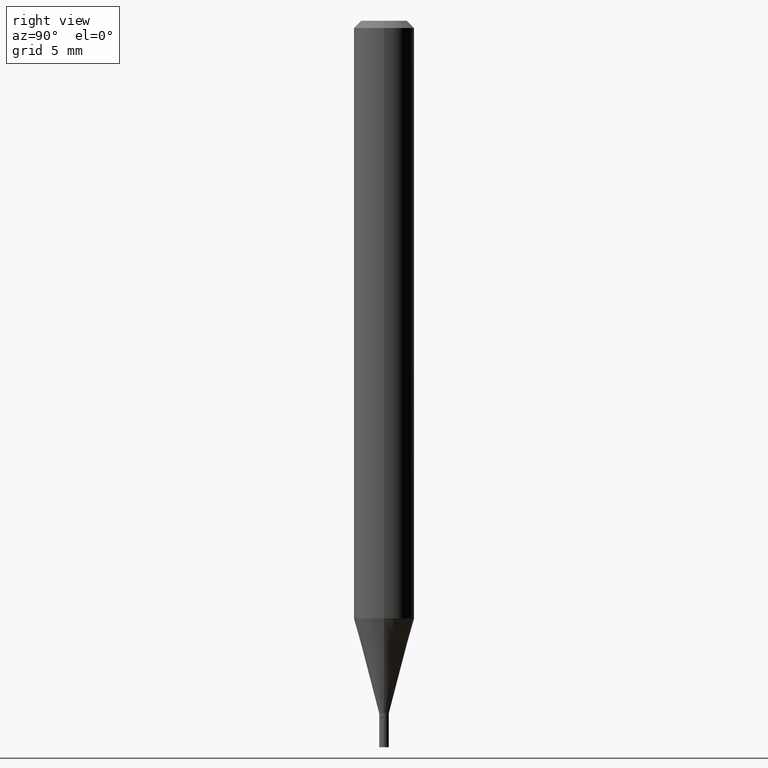
[diagram: clean part render]
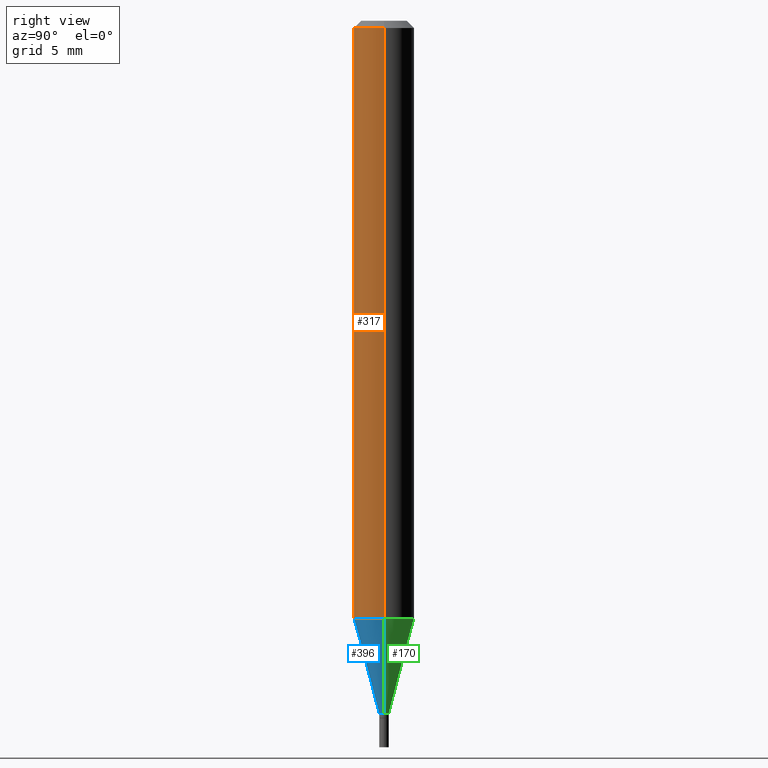
[diagram: same view with three faces highlighted in distinct colors, each labeled with its STEP entity id]
A machine part, right view with three faces highlighted in distinct colors.
Their STEP definitions:

[orange] entity #317 — the highlighted cylindrical surface (edge-blend (fillet) strip) has radius 1.5875 mm, axis along (-0, 0, 1).
#1 = VERTEX_POINT ( 'NONE', #126 ) ;
#6 = CARTESIAN_POINT ( 'NONE',  ( 0.06250000000000000000, -4.364351673553916694E-16, 3.047610484872459871E-30 ) ) ;
#12 = LINE ( 'NONE', #6, #167 ) ;
#13 = DIRECTION ( 'NONE',  ( -2.445468806185136597E-29, 3.491481338843145583E-15, 1.000000000000000000 ) ) ;
#17 = CIRCLE ( 'NONE', #337, 0.06250000000000000000 ) ;
#20 = CARTESIAN_POINT ( 'NONE',  ( 0.06250000000000000000, -4.888073874380388472E-16, -0.01499999999999999944 ) ) ;
#36 = EDGE_CURVE ( 'NONE', #443, #68, #17, .T. ) ;
#46 = CARTESIAN_POINT ( 'NONE',  ( 3.017873166611840083E-29, -4.308723062658035041E-15, -1.234067332602634348 ) ) ;
#47 = CARTESIAN_POINT ( 'NONE',  ( 3.668203209277705088E-31, -5.237222008264718399E-17, -0.01499999999999999944 ) ) ;
#68 = VERTEX_POINT ( 'NONE', #20 ) ;
#88 = ORIENTED_EDGE ( 'NONE', *, *, #36, .F. ) ;
#101 = ORIENTED_EDGE ( 'NONE', *, *, #369, .T. ) ;
#102 = CARTESIAN_POINT ( 'NONE',  ( -0.06249999999999999306, -3.864633852807972425E-15, -1.234067332602634348 ) ) ;
#107 = ORIENTED_EDGE ( 'NONE', *, *, #321, .T. ) ;
#110 = VECTOR ( 'NONE', #450, 39.37007874015748143 ) ;
#126 = CARTESIAN_POINT ( 'NONE',  ( 0.06249999999999999306, -4.745158230013426710E-15, -1.234067332602634348 ) ) ;
#138 = EDGE_LOOP ( 'NONE', ( #402, #101, #107, #88 ) ) ;
#140 = LINE ( 'NONE', #457, #110 ) ;
#144 = CIRCLE ( 'NONE', #339, 0.06250000000000000000 ) ;
#167 = VECTOR ( 'NONE', #301, 39.37007874015748143 ) ;
#243 = CARTESIAN_POINT ( 'NONE',  ( -0.06250000000000000000, -1.736458431520278641E-15, -0.01499999999999999944 ) ) ;
#301 = DIRECTION ( 'NONE',  ( -2.445468806185136877E-29, 3.491481338843145188E-15, 1.000000000000000000 ) ) ;
#308 = CYLINDRICAL_SURFACE ( 'NONE', #313, 0.06250000000000000000 ) ;
#311 = DIRECTION ( 'NONE',  ( 1.000000000000000000, -6.982962677686266711E-15, 0.000000000000000000 ) ) ;
#313 = AXIS2_PLACEMENT_3D ( 'NONE', #338, #406, #441 ) ;
#317 = ADVANCED_FACE ( 'NONE', ( #373 ), #308, .T. ) ;
#321 = EDGE_CURVE ( 'NONE', #1, #68, #12, .T. ) ;
#337 = AXIS2_PLACEMENT_3D ( 'NONE', #47, #13, #311 ) ;
#338 = CARTESIAN_POINT ( 'NONE',  ( 0.000000000000000000, 0.000000000000000000, 0.000000000000000000 ) ) ;
#339 = AXIS2_PLACEMENT_3D ( 'NONE', #46, #410, #403 ) ;
#369 = EDGE_CURVE ( 'NONE', #430, #1, #144, .T. ) ;
#373 = FACE_OUTER_BOUND ( 'NONE', #138, .T. ) ;
#402 = ORIENTED_EDGE ( 'NONE', *, *, #427, .F. ) ;
#403 = DIRECTION ( 'NONE',  ( 1.000000000000000000, -6.982962677686262766E-15, 0.000000000000000000 ) ) ;
#406 = DIRECTION ( 'NONE',  ( -2.445468806185136597E-29, 3.491481338843145583E-15, 1.000000000000000000 ) ) ;
#410 = DIRECTION ( 'NONE',  ( -2.445468806185136597E-29, 3.491481338843145583E-15, 1.000000000000000000 ) ) ;
#427 = EDGE_CURVE ( 'NONE', #430, #443, #140, .T. ) ;
#430 = VERTEX_POINT ( 'NONE', #102 ) ;
#441 = DIRECTION ( 'NONE',  ( 1.000000000000000000, -6.982962677686266711E-15, 4.876176775795935793E-29 ) ) ;
#443 = VERTEX_POINT ( 'NONE', #243 ) ;
#450 = DIRECTION ( 'NONE',  ( -2.445468806185136877E-29, 3.491481338843145188E-15, 1.000000000000000000 ) ) ;
#457 = CARTESIAN_POINT ( 'NONE',  ( -0.06250000000000000000, 4.440892098500626162E-16, -3.074334431409316114E-30 ) ) ;

[blue] entity #396 — the highlighted conical surface has half-angle 15 deg.
#1 = VERTEX_POINT ( 'NONE', #126 ) ;
#23 = CONICAL_SURFACE ( 'NONE', #304, 0.009999999999999918676, 0.2617993877991502405 ) ;
#40 = EDGE_CURVE ( 'NONE', #45, #1, #378, .T. ) ;
#45 = VERTEX_POINT ( 'NONE', #49 ) ;
#46 = CARTESIAN_POINT ( 'NONE',  ( 3.017873166611840083E-29, -4.308723062658035041E-15, -1.234067332602634348 ) ) ;
#49 = CARTESIAN_POINT ( 'NONE',  ( 0.009999999999999918676, -5.062647941322559931E-15, -1.429999999999999938 ) ) ;
#56 = DIRECTION ( 'NONE',  ( -2.445468806185136597E-29, 3.491481338843145583E-15, 1.000000000000000000 ) ) ;
#61 = DIRECTION ( 'NONE',  ( 1.000000000000000000, -6.982962677686292743E-15, 0.000000000000000000 ) ) ;
#94 = CARTESIAN_POINT ( 'NONE',  ( 0.009999999999999918676, -5.062647941322559931E-15, -1.429999999999999938 ) ) ;
#99 = EDGE_CURVE ( 'NONE', #416, #45, #297, .T. ) ;
#102 = CARTESIAN_POINT ( 'NONE',  ( -0.06249999999999999306, -3.864633852807972425E-15, -1.234067332602634348 ) ) ;
#118 = ORIENTED_EDGE ( 'NONE', *, *, #432, .F. ) ;
#126 = CARTESIAN_POINT ( 'NONE',  ( 0.06249999999999999306, -4.745158230013426710E-15, -1.234067332602634348 ) ) ;
#134 = VECTOR ( 'NONE', #415, 39.37007874015748143 ) ;
#142 = AXIS2_PLACEMENT_3D ( 'NONE', #290, #56, #257 ) ;
#144 = CIRCLE ( 'NONE', #339, 0.06250000000000000000 ) ;
#157 = VECTOR ( 'NONE', #210, 39.37007874015748143 ) ;
#169 = CARTESIAN_POINT ( 'NONE',  ( -0.009999999999999918676, -4.393198946888830277E-15, -1.429999999999999938 ) ) ;
#183 = ORIENTED_EDGE ( 'NONE', *, *, #99, .T. ) ;
#208 = CARTESIAN_POINT ( 'NONE',  ( -0.009999999999999918676, -4.921764040969688918E-15, -1.429999999999999938 ) ) ;
#210 = DIRECTION ( 'NONE',  ( -0.2588190451025215166, 5.211531920934551042E-15, 0.9659258262890679791 ) ) ;
#221 = EDGE_LOOP ( 'NONE', ( #118, #183, #234, #309 ) ) ;
#234 = ORIENTED_EDGE ( 'NONE', *, *, #40, .T. ) ;
#257 = DIRECTION ( 'NONE',  ( 1.000000000000000000, -6.982962677686292743E-15, 0.000000000000000000 ) ) ;
#290 = CARTESIAN_POINT ( 'NONE',  ( 3.497020392844745759E-29, -4.992818314545698211E-15, -1.429999999999999938 ) ) ;
#297 = CIRCLE ( 'NONE', #142, 0.009999999999999918676 ) ;
#304 = AXIS2_PLACEMENT_3D ( 'NONE', #386, #451, #61 ) ;
#309 = ORIENTED_EDGE ( 'NONE', *, *, #369, .F. ) ;
#339 = AXIS2_PLACEMENT_3D ( 'NONE', #46, #410, #403 ) ;
#348 = FACE_OUTER_BOUND ( 'NONE', #221, .T. ) ;
#350 = LINE ( 'NONE', #208, #157 ) ;
#369 = EDGE_CURVE ( 'NONE', #430, #1, #144, .T. ) ;
#378 = LINE ( 'NONE', #94, #134 ) ;
#386 = CARTESIAN_POINT ( 'NONE',  ( 3.497020392844745759E-29, -4.992818314545698211E-15, -1.429999999999999938 ) ) ;
#396 = ADVANCED_FACE ( 'NONE', ( #348 ), #23, .T. ) ;
#403 = DIRECTION ( 'NONE',  ( 1.000000000000000000, -6.982962677686262766E-15, 0.000000000000000000 ) ) ;
#410 = DIRECTION ( 'NONE',  ( -2.445468806185136597E-29, 3.491481338843145583E-15, 1.000000000000000000 ) ) ;
#415 = DIRECTION ( 'NONE',  ( 0.2588190451025215166, 1.565188264969620784E-15, 0.9659258262890679791 ) ) ;
#416 = VERTEX_POINT ( 'NONE', #169 ) ;
#430 = VERTEX_POINT ( 'NONE', #102 ) ;
#432 = EDGE_CURVE ( 'NONE', #416, #430, #350, .T. ) ;
#451 = DIRECTION ( 'NONE',  ( -2.445468806185136597E-29, 3.491481338843145583E-15, 1.000000000000000000 ) ) ;

[green] entity #170 — the highlighted conical surface has half-angle 15 deg.
#1 = VERTEX_POINT ( 'NONE', #126 ) ;
#3 = CIRCLE ( 'NONE', #71, 0.009999999999999918676 ) ;
#4 = ORIENTED_EDGE ( 'NONE', *, *, #332, .T. ) ;
#22 = CIRCLE ( 'NONE', #223, 0.06250000000000000000 ) ;
#27 = DIRECTION ( 'NONE',  ( 1.000000000000000000, -6.982962677686292743E-15, 0.000000000000000000 ) ) ;
#40 = EDGE_CURVE ( 'NONE', #45, #1, #378, .T. ) ;
#45 = VERTEX_POINT ( 'NONE', #49 ) ;
#49 = CARTESIAN_POINT ( 'NONE',  ( 0.009999999999999918676, -5.062647941322559931E-15, -1.429999999999999938 ) ) ;
#71 = AXIS2_PLACEMENT_3D ( 'NONE', #198, #444, #401 ) ;
#87 = CARTESIAN_POINT ( 'NONE',  ( 3.497020392844745759E-29, -4.992818314545698211E-15, -1.429999999999999938 ) ) ;
#94 = CARTESIAN_POINT ( 'NONE',  ( 0.009999999999999918676, -5.062647941322559931E-15, -1.429999999999999938 ) ) ;
#102 = CARTESIAN_POINT ( 'NONE',  ( -0.06249999999999999306, -3.864633852807972425E-15, -1.234067332602634348 ) ) ;
#126 = CARTESIAN_POINT ( 'NONE',  ( 0.06249999999999999306, -4.745158230013426710E-15, -1.234067332602634348 ) ) ;
#134 = VECTOR ( 'NONE', #415, 39.37007874015748143 ) ;
#151 = EDGE_LOOP ( 'NONE', ( #4, #256, #278, #346 ) ) ;
#157 = VECTOR ( 'NONE', #210, 39.37007874015748143 ) ;
#160 = DIRECTION ( 'NONE',  ( -2.445468806185136597E-29, 3.491481338843145583E-15, 1.000000000000000000 ) ) ;
#169 = CARTESIAN_POINT ( 'NONE',  ( -0.009999999999999918676, -4.393198946888830277E-15, -1.429999999999999938 ) ) ;
#170 = ADVANCED_FACE ( 'NONE', ( #392 ), #349, .T. ) ;
#198 = CARTESIAN_POINT ( 'NONE',  ( 3.497020392844745759E-29, -4.992818314545698211E-15, -1.429999999999999938 ) ) ;
#200 = CARTESIAN_POINT ( 'NONE',  ( 3.017873166611840083E-29, -4.308723062658035041E-15, -1.234067332602634348 ) ) ;
#208 = CARTESIAN_POINT ( 'NONE',  ( -0.009999999999999918676, -4.921764040969688918E-15, -1.429999999999999938 ) ) ;
#210 = DIRECTION ( 'NONE',  ( -0.2588190451025215166, 5.211531920934551042E-15, 0.9659258262890679791 ) ) ;
#223 = AXIS2_PLACEMENT_3D ( 'NONE', #200, #160, #310 ) ;
#238 = DIRECTION ( 'NONE',  ( -2.445468806185136597E-29, 3.491481338843145583E-15, 1.000000000000000000 ) ) ;
#256 = ORIENTED_EDGE ( 'NONE', *, *, #432, .T. ) ;
#278 = ORIENTED_EDGE ( 'NONE', *, *, #286, .F. ) ;
#286 = EDGE_CURVE ( 'NONE', #1, #430, #22, .T. ) ;
#310 = DIRECTION ( 'NONE',  ( 1.000000000000000000, -6.982962677686262766E-15, 0.000000000000000000 ) ) ;
#319 = AXIS2_PLACEMENT_3D ( 'NONE', #87, #238, #27 ) ;
#332 = EDGE_CURVE ( 'NONE', #45, #416, #3, .T. ) ;
#346 = ORIENTED_EDGE ( 'NONE', *, *, #40, .F. ) ;
#349 = CONICAL_SURFACE ( 'NONE', #319, 0.009999999999999918676, 0.2617993877991502405 ) ;
#350 = LINE ( 'NONE', #208, #157 ) ;
#378 = LINE ( 'NONE', #94, #134 ) ;
#392 = FACE_OUTER_BOUND ( 'NONE', #151, .T. ) ;
#401 = DIRECTION ( 'NONE',  ( 1.000000000000000000, -6.982962677686292743E-15, 0.000000000000000000 ) ) ;
#415 = DIRECTION ( 'NONE',  ( 0.2588190451025215166, 1.565188264969620784E-15, 0.9659258262890679791 ) ) ;
#416 = VERTEX_POINT ( 'NONE', #169 ) ;
#430 = VERTEX_POINT ( 'NONE', #102 ) ;
#432 = EDGE_CURVE ( 'NONE', #416, #430, #350, .T. ) ;
#444 = DIRECTION ( 'NONE',  ( -2.445468806185136597E-29, 3.491481338843145583E-15, 1.000000000000000000 ) ) ;